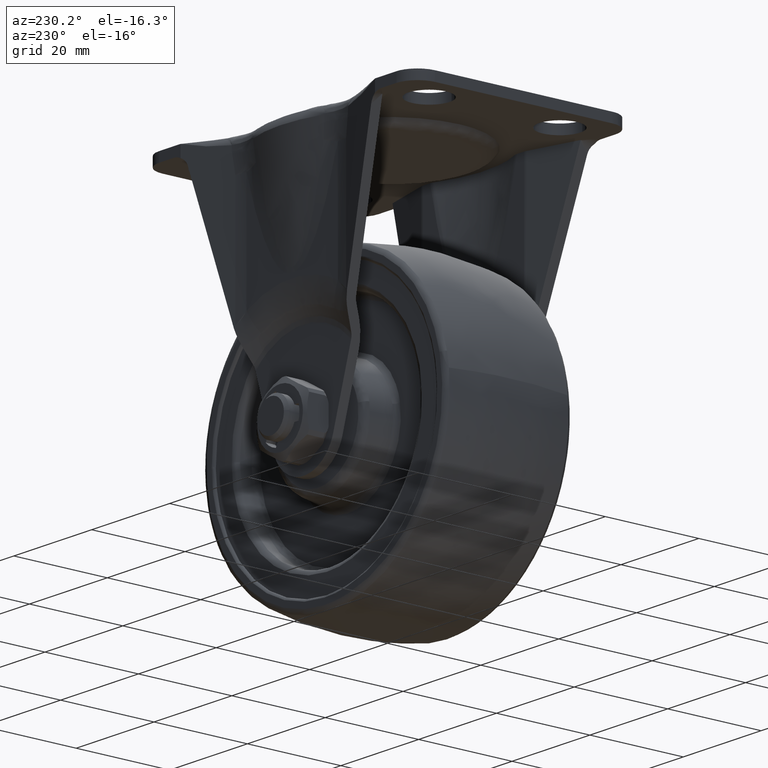
[diagram: clean part render]
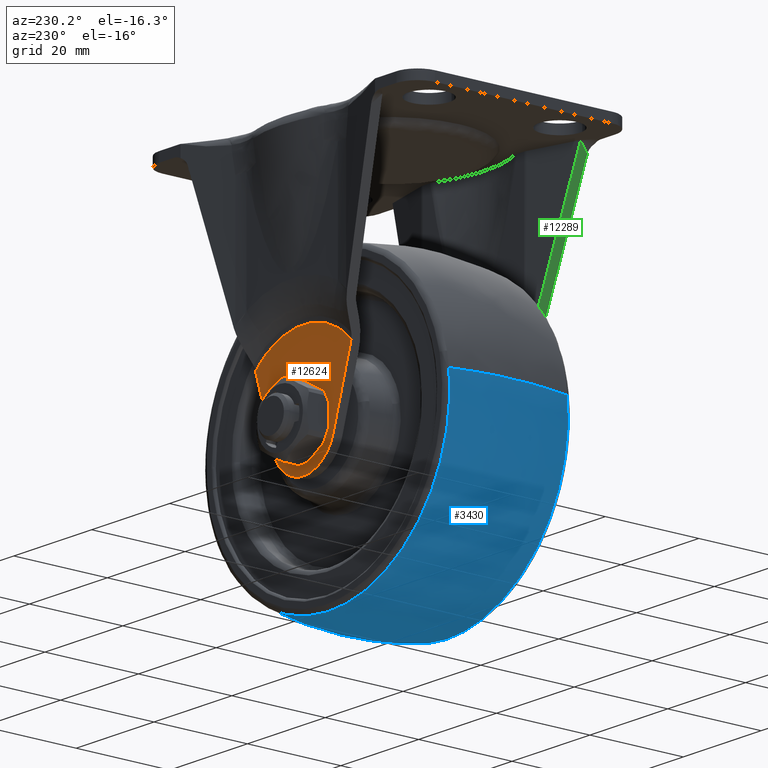
[diagram: same view with three faces highlighted in distinct colors, each labeled with its STEP entity id]
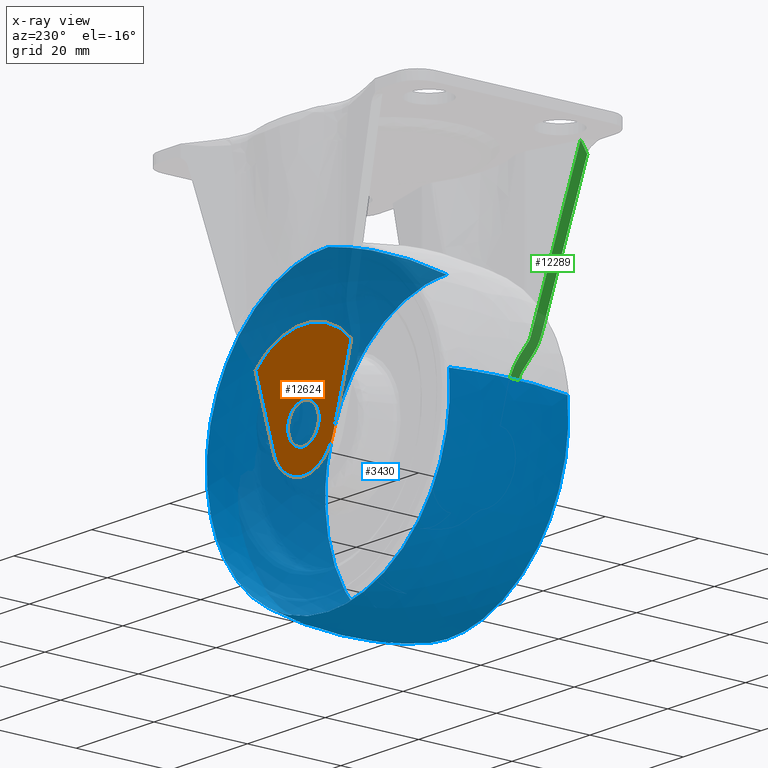
[diagram: x-ray of the same camera — body ghosted, the three highlighted faces saturated]
A machine part, auxiliary view with three faces highlighted in distinct colors.
The next image is the same camera in x-ray (body ghosted, the three faces saturated) — at least one of them is partly hidden behind the body in this view.
Their STEP definitions:

[orange] entity #12624 — the highlighted face is a freeform B-spline surface patch.
#4633=CARTESIAN_POINT('',(-3.987669334918500,18.005904999999899,-0.313836383088712));
#4634=VERTEX_POINT('',#4633);
#4640=CARTESIAN_POINT('',(0.0,18.005904999999899,3.999999999999945));
#4641=VERTEX_POINT('',#4640);
#4642=CARTESIAN_POINT('',(-3.987669334918500,18.005904999999895,-0.313836383088712));
#4643=CARTESIAN_POINT('',(-3.999999999999946,18.005904999999906,-0.157160428208835));
#4644=CARTESIAN_POINT('',(-3.999999999999945,18.005904999999899,0.0));
#4645=CARTESIAN_POINT('',(-3.999999999999946,18.005904999999895,3.999999999999946));
#4646=CARTESIAN_POINT('',(0.0,18.005904999999899,3.999999999999945));
#4654=(BOUNDED_CURVE()B_SPLINE_CURVE(2,(#4642,#4643,#4644,#4645,#4646),.UNSPECIFIED.,.F.,.U.)B_SPLINE_CURVE_WITH_KNOTS((3,2,3),(0.736331300617520,0.750000000000000,1.0),.UNSPECIFIED.)CURVE()GEOMETRIC_REPRESENTATION_ITEM()RATIONAL_B_SPLINE_CURVE((0.969723356139997,0.983986122563488,1.0,0.707106781186548,1.0))REPRESENTATION_ITEM(''));
#4655=EDGE_CURVE('',#4634,#4641,#4654,.T.);
#4657=CARTESIAN_POINT('',(3.987669334918500,18.005904999999899,0.313836383088712));
#4658=VERTEX_POINT('',#4657);
#4659=CARTESIAN_POINT('',(0.0,18.005904999999899,3.999999999999945));
#4660=CARTESIAN_POINT('',(3.697561966302893,18.005904999999903,3.999999999999946));
#4661=CARTESIAN_POINT('',(3.987669334918500,18.005904999999895,0.313836383088712));
#4669=(BOUNDED_CURVE()B_SPLINE_CURVE(2,(#4659,#4660,#4661),.UNSPECIFIED.,.F.,.U.)B_SPLINE_CURVE_WITH_KNOTS((3,3),(0.0,0.236331300617520),.UNSPECIFIED.)CURVE()GEOMETRIC_REPRESENTATION_ITEM()RATIONAL_B_SPLINE_CURVE((1.0,0.723120658623060,0.969723356139997))REPRESENTATION_ITEM(''));
#4670=EDGE_CURVE('',#4641,#4658,#4669,.T.);
#4716=CARTESIAN_POINT('',(0.0,18.005904999999899,-3.999999999999945));
#4717=VERTEX_POINT('',#4716);
#4718=CARTESIAN_POINT('',(3.987669334918500,18.005904999999895,0.313836383088712));
#4719=CARTESIAN_POINT('',(3.999999999999946,18.005904999999906,0.157160428208834));
#4720=CARTESIAN_POINT('',(3.999999999999945,18.005904999999899,0.0));
#4721=CARTESIAN_POINT('',(3.999999999999946,18.005904999999895,-3.999999999999946));
#4722=CARTESIAN_POINT('',(0.0,18.005904999999899,-3.999999999999945));
#4730=(BOUNDED_CURVE()B_SPLINE_CURVE(2,(#4718,#4719,#4720,#4721,#4722),.UNSPECIFIED.,.F.,.U.)B_SPLINE_CURVE_WITH_KNOTS((3,2,3),(0.236331300617520,0.250000000000000,0.500000000000000),.UNSPECIFIED.)CURVE()GEOMETRIC_REPRESENTATION_ITEM()RATIONAL_B_SPLINE_CURVE((0.969723356139997,0.983986122563488,1.0,0.707106781186548,1.0))REPRESENTATION_ITEM(''));
#4731=EDGE_CURVE('',#4658,#4717,#4730,.T.);
#4733=CARTESIAN_POINT('',(0.0,18.005904999999899,-3.999999999999945));
#4734=CARTESIAN_POINT('',(-3.697561966302902,18.005904999999899,-3.999999999999945));
#4735=CARTESIAN_POINT('',(-3.987669334918500,18.005904999999895,-0.313836383088712));
#4743=(BOUNDED_CURVE()B_SPLINE_CURVE(2,(#4733,#4734,#4735),.UNSPECIFIED.,.F.,.U.)B_SPLINE_CURVE_WITH_KNOTS((3,3),(0.500000000000000,0.736331300617521),.UNSPECIFIED.)CURVE()GEOMETRIC_REPRESENTATION_ITEM()RATIONAL_B_SPLINE_CURVE((1.0,0.723120658623059,0.969723356139997))REPRESENTATION_ITEM(''));
#4744=EDGE_CURVE('',#4717,#4634,#4743,.T.);
#6427=CARTESIAN_POINT('',(12.281271808417980,18.005904999999849,11.754499873933780));
#6428=VERTEX_POINT('',#6427);
#6442=CARTESIAN_POINT('',(-12.281271991667440,18.005904999999849,11.754499682472060));
#6443=VERTEX_POINT('',#6442);
#6444=CARTESIAN_POINT('',(-12.281271991667440,18.005904999999849,11.754499682472060));
#6445=CARTESIAN_POINT('',(-7.260822420891825,18.005904999999849,16.999938311483820));
#6446=CARTESIAN_POINT('',(-0.000000132512232,18.005904999999849,16.999938368080951));
#6447=CARTESIAN_POINT('',(7.260822155867370,18.005904999999849,16.999938424678088));
#6448=CARTESIAN_POINT('',(12.281271808417960,18.005904999999849,11.754499873933771));
#6456=(BOUNDED_CURVE()B_SPLINE_CURVE(2,(#6444,#6445,#6446,#6447,#6448),.UNSPECIFIED.,.F.,.U.)B_SPLINE_CURVE_WITH_KNOTS((3,2,3),(0.0,0.500000000000000,1.0),.UNSPECIFIED.)CURVE()GEOMETRIC_REPRESENTATION_ITEM()RATIONAL_B_SPLINE_CURVE((1.0,0.919631358259500,1.0,0.919631358259500,1.0))REPRESENTATION_ITEM(''));
#6457=EDGE_CURVE('',#6443,#6428,#6456,.T.);
#12350=CARTESIAN_POINT('',(-7.648125792956220,18.005904999999899,-3.346523354905685));
#12351=VERTEX_POINT('',#12350);
#12357=CARTESIAN_POINT('',(7.648124999999880,18.005904999999899,-3.346523000000000));
#12358=VERTEX_POINT('',#12357);
#12359=CARTESIAN_POINT('',(7.648124999999880,18.005904999999899,-3.346523000000000));
#12360=CARTESIAN_POINT('',(5.913581328119276,18.005904999999903,-8.999999960560439));
#12361=CARTESIAN_POINT('',(0.000000053354556,18.005904999999899,-9.000000000000002));
#12362=CARTESIAN_POINT('',(-5.913581221410172,18.005904999999903,-9.000000039439565));
#12363=CARTESIAN_POINT('',(-7.648125792956217,18.005904999999899,-3.346523354905685));
#12371=(BOUNDED_CURVE()B_SPLINE_CURVE(2,(#12359,#12360,#12361,#12362,#12363),.UNSPECIFIED.,.F.,.U.)B_SPLINE_CURVE_WITH_KNOTS((3,2,3),(0.0,0.500000000000000,1.0),.UNSPECIFIED.)CURVE()GEOMETRIC_REPRESENTATION_ITEM()RATIONAL_B_SPLINE_CURVE((1.0,0.804150300934855,1.0,0.804150300934855,1.0))REPRESENTATION_ITEM(''));
#12372=EDGE_CURVE('',#12358,#12351,#12371,.T.);
#12599=CARTESIAN_POINT('',(-13.508171006874729,18.005904999999849,-10.298696871092639));
#12600=CARTESIAN_POINT('',(-13.508171006874729,18.005904999999849,18.298635936546361));
#12601=CARTESIAN_POINT('',(13.508171482444030,18.005904999999849,-10.298696871092639));
#12602=CARTESIAN_POINT('',(13.508171482444030,18.005904999999849,18.298635936546361));
#12603=B_SPLINE_SURFACE_WITH_KNOTS('',1,1,((#12599,#12601),(#12600,#12602)),.UNSPECIFIED.,.F.,.F.,.U.,(2,2),(2,2),(0.0,28.597332807638999),(0.0,27.016342489318770),.UNSPECIFIED.);
#12604=CARTESIAN_POINT('',(-12.281271991667440,18.005904999999849,11.754499682472060));
#12605=CARTESIAN_POINT('',(-7.648125792956220,18.005904999999899,-3.346523354905685));
#12606=QUASI_UNIFORM_CURVE('',1,(#12604,#12605),.UNSPECIFIED.,.F.,.U.);
#12607=EDGE_CURVE('',#6443,#12351,#12606,.T.);
#12608=ORIENTED_EDGE('',*,*,#12607,.F.);
#12609=ORIENTED_EDGE('',*,*,#6457,.T.);
#12610=CARTESIAN_POINT('',(7.648124999999880,18.005904999999899,-3.346523000000000));
#12611=CARTESIAN_POINT('',(12.281271808417980,18.005904999999849,11.754499873933780));
#12612=QUASI_UNIFORM_CURVE('',1,(#12610,#12611),.UNSPECIFIED.,.F.,.U.);
#12613=EDGE_CURVE('',#12358,#6428,#12612,.T.);
#12614=ORIENTED_EDGE('',*,*,#12613,.F.);
#12615=ORIENTED_EDGE('',*,*,#12372,.T.);
#12616=EDGE_LOOP('',(#12608,#12609,#12614,#12615));
#12617=FACE_OUTER_BOUND('',#12616,.T.);
#12618=ORIENTED_EDGE('',*,*,#4744,.F.);
#12619=ORIENTED_EDGE('',*,*,#4731,.F.);
#12620=ORIENTED_EDGE('',*,*,#4670,.F.);
#12621=ORIENTED_EDGE('',*,*,#4655,.F.);
#12622=EDGE_LOOP('',(#12618,#12619,#12620,#12621));
#12623=FACE_BOUND('',#12622,.T.);
#12624=ADVANCED_FACE('',(#12617,#12623),#12603,.T.);

[blue] entity #3430 — the highlighted face is a freeform B-spline surface patch.
#2084=CARTESIAN_POINT('',(14.267128482310619,-12.695312032875380,-27.801027063266108));
#2085=VERTEX_POINT('',#2084);
#2099=CARTESIAN_POINT('',(30.765833215917429,-12.695307417059571,5.469150214503283));
#2100=VERTEX_POINT('',#2099);
#2101=CARTESIAN_POINT('',(14.267128482310623,-12.695312032875375,-27.801027063266119));
#2102=CARTESIAN_POINT('',(31.248168919015697,-12.695310789330925,-19.086575837847370));
#2103=CARTESIAN_POINT('',(31.248168919015701,-12.695308104582571,0.000000875337394));
#2104=CARTESIAN_POINT('',(31.248168919015704,-12.695307716941178,2.755844642648586));
#2105=CARTESIAN_POINT('',(30.765833215917432,-12.695307417059572,5.469150214503284));
#2113=(BOUNDED_CURVE()B_SPLINE_CURVE(2,(#2101,#2102,#2103,#2104,#2105),.UNSPECIFIED.,.F.,.U.)B_SPLINE_CURVE_WITH_KNOTS((3,2,3),(0.077652126994851,0.250000000000000,0.280081741416185),.UNSPECIFIED.)CURVE()GEOMETRIC_REPRESENTATION_ITEM()RATIONAL_B_SPLINE_CURVE((0.874565044723577,0.798081906879479,1.0,0.964757047716399,0.937995450451504))REPRESENTATION_ITEM(''));
#2114=EDGE_CURVE('',#2085,#2100,#2113,.T.);
#2213=CARTESIAN_POINT('',(0.0,-12.695303709165110,31.248170669690492));
#2214=VERTEX_POINT('',#2213);
#2215=CARTESIAN_POINT('',(30.765833215917432,-12.695307417059574,5.469150214503283));
#2216=CARTESIAN_POINT('',(26.183174376580730,-12.695303709165110,31.248170669690481));
#2217=CARTESIAN_POINT('',(0.0,-12.695303709165110,31.248170669690492));
#2225=(BOUNDED_CURVE()B_SPLINE_CURVE(2,(#2215,#2216,#2217),.UNSPECIFIED.,.F.,.U.)B_SPLINE_CURVE_WITH_KNOTS((3,3),(0.280081741416185,0.500000000000000),.UNSPECIFIED.)CURVE()GEOMETRIC_REPRESENTATION_ITEM()RATIONAL_B_SPLINE_CURVE((0.937995450451504,0.742349733470149,1.0))REPRESENTATION_ITEM(''));
#2226=EDGE_CURVE('',#2100,#2214,#2225,.T.);
#2228=CARTESIAN_POINT('',(-31.039171631068569,-12.695307140415460,3.608039904684822));
#2229=VERTEX_POINT('',#2228);
#2243=CARTESIAN_POINT('',(0.0,-12.695312500000020,-31.248168919015701));
#2244=VERTEX_POINT('',#2243);
#2245=CARTESIAN_POINT('',(-31.039171631068573,-12.695307140415455,3.608039904684822));
#2246=CARTESIAN_POINT('',(-31.248169951881604,-12.695307278645565,1.810073202015110));
#2247=CARTESIAN_POINT('',(-31.248169921174881,-12.695307433874490,0.000000116492485));
#2248=CARTESIAN_POINT('',(-31.248169391069894,-12.695310113666775,-31.248168864143427));
#2249=CARTESIAN_POINT('',(0.0,-12.695312500000020,-31.248168919015701));
#2257=(BOUNDED_CURVE()B_SPLINE_CURVE(2,(#2245,#2246,#2247,#2248,#2249),.UNSPECIFIED.,.F.,.U.)B_SPLINE_CURVE_WITH_KNOTS((3,2,3),(0.730000032484067,0.750000000000000,1.0),.UNSPECIFIED.)CURVE()GEOMETRIC_REPRESENTATION_ITEM()RATIONAL_B_SPLINE_CURVE((0.956886182127189,0.976568580552376,1.0,0.707106781186547,1.0))REPRESENTATION_ITEM(''));
#2258=EDGE_CURVE('',#2229,#2244,#2257,.T.);
#2260=CARTESIAN_POINT('',(0.0,-12.695312500000020,-31.248168919015701));
#2261=CARTESIAN_POINT('',(7.550003552074510,-12.695312500000020,-31.248168919015697));
#2262=CARTESIAN_POINT('',(14.267128482310623,-12.695312032875375,-27.801027063266119));
#2270=(BOUNDED_CURVE()B_SPLINE_CURVE(2,(#2260,#2261,#2262),.UNSPECIFIED.,.F.,.U.)B_SPLINE_CURVE_WITH_KNOTS((3,3),(0.0,0.077652126994851),.UNSPECIFIED.)CURVE()GEOMETRIC_REPRESENTATION_ITEM()RATIONAL_B_SPLINE_CURVE((1.0,0.909024874307068,0.874565044723577))REPRESENTATION_ITEM(''));
#2271=EDGE_CURVE('',#2244,#2085,#2270,.T.);
#2306=CARTESIAN_POINT('',(30.108965251965181,12.695309150866240,-8.360519532605659));
#2307=VERTEX_POINT('',#2306);
#2308=CARTESIAN_POINT('',(0.0,12.695303127355491,31.248170785556471));
#2309=VERTEX_POINT('',#2308);
#2310=CARTESIAN_POINT('',(30.108965251965181,12.695309150866244,-8.360519532605659));
#2311=CARTESIAN_POINT('',(31.248168919015697,12.695308452235817,-4.257873192118873));
#2312=CARTESIAN_POINT('',(31.248168919015701,12.695307813677770,0.000000933270384));
#2313=CARTESIAN_POINT('',(31.248168919015701,12.695303127355491,31.248170785556464));
#2314=CARTESIAN_POINT('',(0.0,12.695303127355491,31.248170785556471));
#2322=(BOUNDED_CURVE()B_SPLINE_CURVE(2,(#2310,#2311,#2312,#2313,#2314),.UNSPECIFIED.,.F.,.U.)B_SPLINE_CURVE_WITH_KNOTS((3,2,3),(0.204398607392699,0.250000000000000,0.500000000000000),.UNSPECIFIED.)CURVE()GEOMETRIC_REPRESENTATION_ITEM()RATIONAL_B_SPLINE_CURVE((0.912639455276521,0.946574645347486,1.0,0.707106781186547,1.0))REPRESENTATION_ITEM(''));
#2323=EDGE_CURVE('',#2307,#2309,#2322,.T.);
#2426=CARTESIAN_POINT('',(0.0,12.695312500000041,-31.248168919015701));
#2427=VERTEX_POINT('',#2426);
#2428=CARTESIAN_POINT('',(0.0,12.695312500000041,-31.248168919015701));
#2429=CARTESIAN_POINT('',(23.753626863599639,12.695312500000039,-31.248168919015701));
#2430=CARTESIAN_POINT('',(30.108965251965177,12.695309150866235,-8.360519532605659));
#2438=(BOUNDED_CURVE()B_SPLINE_CURVE(2,(#2428,#2429,#2430),.UNSPECIFIED.,.F.,.U.)B_SPLINE_CURVE_WITH_KNOTS((3,3),(0.0,0.204398607392698),.UNSPECIFIED.)CURVE()GEOMETRIC_REPRESENTATION_ITEM()RATIONAL_B_SPLINE_CURVE((1.0,0.760532135839062,0.912639455276521))REPRESENTATION_ITEM(''));
#2439=EDGE_CURVE('',#2427,#2307,#2438,.T.);
#2441=CARTESIAN_POINT('',(-31.039171757126010,12.695306496773160,3.608039930368593));
#2442=VERTEX_POINT('',#2441);
#2443=CARTESIAN_POINT('',(-31.039171757126010,12.695306496773160,3.608039930368593));
#2444=CARTESIAN_POINT('',(-31.248170075920374,12.695306651603566,1.810073221930395));
#2445=CARTESIAN_POINT('',(-31.248170041526020,12.695306825474230,0.000000130482294));
#2446=CARTESIAN_POINT('',(-31.248169447759746,12.695309827087666,-31.248168857553697));
#2447=CARTESIAN_POINT('',(0.0,12.695312500000041,-31.248168919015701));
#2455=(BOUNDED_CURVE()B_SPLINE_CURVE(2,(#2443,#2444,#2445,#2446,#2447),.UNSPECIFIED.,.F.,.U.)B_SPLINE_CURVE_WITH_KNOTS((3,2,3),(0.730000032424754,0.750000000000000,1.0),.UNSPECIFIED.)CURVE()GEOMETRIC_REPRESENTATION_ITEM()RATIONAL_B_SPLINE_CURVE((0.956886182010447,0.976568580482886,1.0,0.707106781186547,1.0))REPRESENTATION_ITEM(''));
#2456=EDGE_CURVE('',#2442,#2427,#2455,.T.);
#3338=CARTESIAN_POINT('',(-30.773485923211418,-13.971443930923725,3.577161419368414));
#3339=CARTESIAN_POINT('',(-32.282628353075225,-7.068329207024573,3.752586656857315));
#3340=CARTESIAN_POINT('',(-32.282628353075225,-5.969956E-015,3.752586656857316));
#3341=CARTESIAN_POINT('',(-32.282628353075225,7.068329207024553,3.752586656857315));
#3342=CARTESIAN_POINT('',(-30.773485923211428,13.971443930923703,3.577161419368414));
#3343=CARTESIAN_POINT('',(-30.980695919980707,-13.971443930923725,1.794582113832292));
#3344=CARTESIAN_POINT('',(-32.500000000000000,-7.068329207024572,1.882589043519000));
#3345=CARTESIAN_POINT('',(-32.500000000000000,-5.969956E-015,1.882589043519000));
#3346=CARTESIAN_POINT('',(-32.500000000000000,7.068329207024553,1.882589043519000));
#3347=CARTESIAN_POINT('',(-30.980695919980707,13.971443930923703,1.794582113832292));
#3348=CARTESIAN_POINT('',(-30.980695919980707,-13.971443930923723,0.0));
#3349=CARTESIAN_POINT('',(-32.500000000000000,-7.068329207024573,0.0));
#3350=CARTESIAN_POINT('',(-32.500000000000000,-5.969956E-015,0.0));
#3351=CARTESIAN_POINT('',(-32.500000000000000,7.068329207024554,0.0));
#3352=CARTESIAN_POINT('',(-30.980695919980707,13.971443930923702,0.0));
#3353=CARTESIAN_POINT('',(-30.980695919980707,-13.971443930923723,-30.980695919980707));
#3354=CARTESIAN_POINT('',(-32.500000000000007,-7.068329207024572,-32.500000000000007));
#3355=CARTESIAN_POINT('',(-32.500000000000007,-5.969956E-015,-32.500000000000007));
#3356=CARTESIAN_POINT('',(-32.500000000000007,7.068329207024556,-32.500000000000007));
#3357=CARTESIAN_POINT('',(-30.980695919980707,13.971443930923703,-30.980695919980707));
#3358=CARTESIAN_POINT('',(0.0,-13.971443930923723,-30.980695919980707));
#3359=CARTESIAN_POINT('',(0.0,-7.068329207024573,-32.500000000000000));
#3360=CARTESIAN_POINT('',(0.0,-5.969956E-015,-32.500000000000000));
#3361=CARTESIAN_POINT('',(0.0,7.068329207024554,-32.500000000000000));
#3362=CARTESIAN_POINT('',(0.0,13.971443930923702,-30.980695919980707));
#3363=CARTESIAN_POINT('',(30.980695919980707,-13.971443930923723,-30.980695919980707));
#3364=CARTESIAN_POINT('',(32.500000000000007,-7.068329207024572,-32.500000000000007));
#3365=CARTESIAN_POINT('',(32.500000000000007,-5.969956E-015,-32.500000000000007));
#3366=CARTESIAN_POINT('',(32.500000000000007,7.068329207024556,-32.500000000000007));
#3367=CARTESIAN_POINT('',(30.980695919980707,13.971443930923703,-30.980695919980707));
#3368=CARTESIAN_POINT('',(30.980695919980707,-13.971443930923723,0.0));
#3369=CARTESIAN_POINT('',(32.500000000000000,-7.068329207024573,0.0));
#3370=CARTESIAN_POINT('',(32.500000000000000,-5.969956E-015,0.0));
#3371=CARTESIAN_POINT('',(32.500000000000000,7.068329207024554,0.0));
#3372=CARTESIAN_POINT('',(30.980695919980707,13.971443930923702,0.0));
#3373=CARTESIAN_POINT('',(30.980695919980707,-13.971443930923723,30.980695919980707));
#3374=CARTESIAN_POINT('',(32.500000000000007,-7.068329207024572,32.500000000000007));
#3375=CARTESIAN_POINT('',(32.500000000000007,-5.969956E-015,32.500000000000007));
#3376=CARTESIAN_POINT('',(32.500000000000007,7.068329207024556,32.500000000000007));
#3377=CARTESIAN_POINT('',(30.980695919980707,13.971443930923703,30.980695919980707));
#3378=CARTESIAN_POINT('',(0.0,-13.971443930923723,30.980695919980707));
#3379=CARTESIAN_POINT('',(0.0,-7.068329207024573,32.500000000000000));
#3380=CARTESIAN_POINT('',(0.0,-5.969956E-015,32.500000000000000));
#3381=CARTESIAN_POINT('',(0.0,7.068329207024554,32.500000000000000));
#3382=CARTESIAN_POINT('',(0.0,13.971443930923702,30.980695919980707));
#3390=(BOUNDED_SURFACE()B_SPLINE_SURFACE(2,2,((#3338,#3343,#3348,#3353,#3358,#3363,#3368,#3373,#3378),(#3339,#3344,#3349,#3354,#3359,#3364,#3369,#3374,#3379),(#3340,#3345,#3350,#3355,#3360,#3365,#3370,#3375,#3380),(#3341,#3346,#3351,#3356,#3361,#3366,#3371,#3376,#3381),(#3342,#3347,#3352,#3357,#3362,#3367,#3372,#3377,#3382)),.UNSPECIFIED.,.F.,.F.,.U.)B_SPLINE_SURFACE_WITH_KNOTS((3,2,3),(3,2,2,2,3),(0.0,14.378540232222210,28.757080464444410),(0.0,4.307820149998688,58.155583258501053,112.003346367003400,165.851109475505810),.UNSPECIFIED.)GEOMETRIC_REPRESENTATION_ITEM()RATIONAL_B_SPLINE_SURFACE(((0.914152645581930,0.932956071312678,0.955341101055019,0.675528170902227,0.955341101055019,0.675528170902227,0.955341101055019,0.675528170902227,0.955341101055019),(0.929794029671774,0.948919186795502,0.971687230085695,0.687086629585968,0.971687230085695,0.687086629585968,0.971687230085695,0.687086629585968,0.971687230085695),(0.956886126402807,0.976568547383107,1.0,0.707106781186548,1.0,0.707106781186548,1.0,0.707106781186548,1.0),(0.929794029671774,0.948919186795502,0.971687230085695,0.687086629585968,0.971687230085695,0.687086629585968,0.971687230085695,0.687086629585968,0.971687230085695),(0.914152645581930,0.932956071312678,0.955341101055019,0.675528170902227,0.955341101055019,0.675528170902227,0.955341101055019,0.675528170902227,0.955341101055019)))REPRESENTATION_ITEM('')SURFACE());
#3391=ORIENTED_EDGE('',*,*,#2258,.F.);
#3392=CARTESIAN_POINT('',(-31.039171631068569,-12.695307140415462,3.608039904684822));
#3393=CARTESIAN_POINT('',(-32.282628953079303,-6.409372375657039,3.752581495152104));
#3394=CARTESIAN_POINT('',(-32.282628952759936,-1.129903E-014,3.752581497899453));
#3395=CARTESIAN_POINT('',(-32.282628952440568,6.409372044325697,3.752581500646802));
#3396=CARTESIAN_POINT('',(-31.039171757126010,12.695306496773158,3.608039930368593));
#3404=(BOUNDED_CURVE()B_SPLINE_CURVE(2,(#3392,#3393,#3394,#3395,#3396),.UNSPECIFIED.,.F.,.U.)B_SPLINE_CURVE_WITH_KNOTS((3,2,3),(0.403932501776219,0.500000000000000,0.596067493385425),.UNSPECIFIED.)CURVE()GEOMETRIC_REPRESENTATION_ITEM()RATIONAL_B_SPLINE_CURVE((0.917088417782160,0.932254713046547,0.956886118190660,0.932254714287086,0.917088419309834))REPRESENTATION_ITEM(''));
#3405=EDGE_CURVE('',#2229,#2442,#3404,.T.);
#3406=ORIENTED_EDGE('',*,*,#3405,.T.);
#3407=ORIENTED_EDGE('',*,*,#2456,.T.);
#3408=ORIENTED_EDGE('',*,*,#2439,.T.);
#3409=ORIENTED_EDGE('',*,*,#2323,.T.);
#3410=CARTESIAN_POINT('',(0.0,-12.695303709165106,31.248170669690492));
#3411=CARTESIAN_POINT('',(0.0,-6.409370609333253,32.500000000000000));
#3412=CARTESIAN_POINT('',(0.0,-5.969956E-015,32.500000000000000));
#3413=CARTESIAN_POINT('',(0.0,6.409370309831887,32.500000000000000));
#3414=CARTESIAN_POINT('',(0.0,12.695303127355494,31.248170785556468));
#3422=(BOUNDED_CURVE()B_SPLINE_CURVE(2,(#3410,#3411,#3412,#3413,#3414),.UNSPECIFIED.,.F.,.U.)B_SPLINE_CURVE_WITH_KNOTS((3,2,3),(0.403932527569445,0.500000000000000,0.596067468057005),.UNSPECIFIED.)CURVE()GEOMETRIC_REPRESENTATION_ITEM()RATIONAL_B_SPLINE_CURVE((0.958409165408592,0.974258798343334,1.0,0.974258799515223,0.958409166851727))REPRESENTATION_ITEM(''));
#3423=EDGE_CURVE('',#2214,#2309,#3422,.T.);
#3424=ORIENTED_EDGE('',*,*,#3423,.F.);
#3425=ORIENTED_EDGE('',*,*,#2226,.F.);
#3426=ORIENTED_EDGE('',*,*,#2114,.F.);
#3427=ORIENTED_EDGE('',*,*,#2271,.F.);
#3428=EDGE_LOOP('',(#3391,#3406,#3407,#3408,#3409,#3424,#3425,#3426,#3427));
#3429=FACE_OUTER_BOUND('',#3428,.T.);
#3430=ADVANCED_FACE('',(#3429),#3390,.T.);

[green] entity #12289 — the highlighted face is a freeform B-spline surface patch.
#6170=CARTESIAN_POINT('',(-14.319961813695160,-18.676329657613799,18.399290608720150));
#6171=VERTEX_POINT('',#6170);
#6172=CARTESIAN_POINT('',(-14.101468009071979,-18.470476564310751,17.687144192568852));
#6173=VERTEX_POINT('',#6172);
#6174=CARTESIAN_POINT('',(-14.319961813695160,-18.676329657613799,18.399290608720150));
#6175=CARTESIAN_POINT('',(-14.281736912598470,-18.666458227781892,18.274702516299389));
#6176=CARTESIAN_POINT('',(-14.244434928942811,-18.643943955136240,18.153122529070568));
#6177=CARTESIAN_POINT('',(-14.189781382876591,-18.592371948699910,17.974987835374549));
#6178=CARTESIAN_POINT('',(-14.171781715655460,-18.572192460003549,17.916320732545000));
#6179=CARTESIAN_POINT('',(-14.136222801298439,-18.525800264837759,17.800422007337371));
#6180=CARTESIAN_POINT('',(-14.118630821819600,-18.499514617818960,17.743083699001868));
#6181=CARTESIAN_POINT('',(-14.101468009071979,-18.470476564310751,17.687144192568852));
#6182=B_SPLINE_CURVE_WITH_KNOTS('',3,(#6174,#6175,#6176,#6177,#6178,#6179,#6180,#6181),.UNSPECIFIED.,.F.,.U.,(4,2,2,4),(0.0,0.499999999999997,0.749999999999998,1.0),.UNSPECIFIED.);
#6183=EDGE_CURVE('',#6171,#6173,#6182,.T.);
#6520=CARTESIAN_POINT('',(-12.595002921462999,-18.241253714584150,12.777056627164839));
#6521=VERTEX_POINT('',#6520);
#6535=CARTESIAN_POINT('',(-12.281271991667440,-18.005904999999849,11.754499682472041));
#6536=VERTEX_POINT('',#6535);
#6537=CARTESIAN_POINT('',(-12.281271991667440,-18.005904999999849,11.754499682472041));
#6538=CARTESIAN_POINT('',(-12.335619259952081,-18.005904999999849,11.931636111595420));
#6539=CARTESIAN_POINT('',(-12.389027895671630,-18.025250309731440,12.105713214535839));
#6540=CARTESIAN_POINT('',(-12.467722990283409,-18.083490487476059,12.362207579184449));
#6541=CARTESIAN_POINT('',(-12.493716051325141,-18.107822215504100,12.446927900191280));
#6542=CARTESIAN_POINT('',(-12.545191094867871,-18.167019050686100,12.614702761558251));
#6543=CARTESIAN_POINT('',(-12.570419479401220,-18.201610538397428,12.696930738967920));
#6544=CARTESIAN_POINT('',(-12.595002921462999,-18.241253714584150,12.777056627164860));
#6545=B_SPLINE_CURVE_WITH_KNOTS('',3,(#6537,#6538,#6539,#6540,#6541,#6542,#6543,#6544),.UNSPECIFIED.,.F.,.U.,(4,2,2,4),(0.0,0.500000000000000,0.750000000000000,1.0),.UNSPECIFIED.);
#6546=EDGE_CURVE('',#6536,#6521,#6545,.T.);
#10699=CARTESIAN_POINT('',(-24.168787795165301,-21.219750093333399,50.500000000000000));
#10700=VERTEX_POINT('',#10699);
#10708=CARTESIAN_POINT('',(-23.868019397345151,-22.174885192544188,49.519692402863917));
#10709=VERTEX_POINT('',#10708);
#10710=CARTESIAN_POINT('',(-23.868019397345151,-22.174885192544188,49.519692402863917));
#10711=CARTESIAN_POINT('',(-23.968275529951871,-21.856506826140610,49.846461601909283));
#10712=CARTESIAN_POINT('',(-24.068531662558581,-21.538128459737020,50.173230800954627));
#10713=CARTESIAN_POINT('',(-24.168787795165301,-21.219750093333449,50.500000000000000));
#10714=B_SPLINE_CURVE_WITH_KNOTS('',3,(#10710,#10711,#10712,#10713),.UNSPECIFIED.,.F.,.U.,(4,4),(0.139624330417807,0.279248660835614),.UNSPECIFIED.);
#10715=EDGE_CURVE('',#10709,#10700,#10714,.T.);
#10717=CARTESIAN_POINT('',(-23.567250999525001,-23.130020291754750,48.539384805727799));
#10718=VERTEX_POINT('',#10717);
#10719=CARTESIAN_POINT('',(-23.567250999525001,-23.130020291754750,48.539384805727799));
#10720=CARTESIAN_POINT('',(-23.667507132131728,-22.811641925351349,48.866154004773243));
#10721=CARTESIAN_POINT('',(-23.767763264738441,-22.493263558947771,49.192923203818573));
#10722=CARTESIAN_POINT('',(-23.868019397345151,-22.174885192544188,49.519692402863917));
#10723=B_SPLINE_CURVE_WITH_KNOTS('',3,(#10719,#10720,#10721,#10722),.UNSPECIFIED.,.F.,.U.,(4,4),(0.0,0.139624330417807),.UNSPECIFIED.);
#10724=EDGE_CURVE('',#10718,#10709,#10723,.T.);
#11639=CARTESIAN_POINT('',(-13.561691867612540,-19.829762016889550,15.927828200395201));
#11640=VERTEX_POINT('',#11639);
#11641=CARTESIAN_POINT('',(-14.528225214446360,-20.795727560416100,19.078092621968601));
#11642=VERTEX_POINT('',#11641);
#11643=CARTESIAN_POINT('',(-13.561691867612540,-19.829762016889550,15.927828200395201));
#11644=CARTESIAN_POINT('',(-13.714664101756091,-20.085154244590910,16.426417295445059));
#11645=CARTESIAN_POINT('',(-13.871782830821861,-20.292322098098641,16.938521242750991));
#11646=CARTESIAN_POINT('',(-14.193962328692249,-20.614290660002968,17.988614974981019));
#11647=CARTESIAN_POINT('',(-14.359024605904620,-20.729073825468021,18.526609676301280));
#11648=CARTESIAN_POINT('',(-14.528225214446360,-20.795727560416100,19.078092621968601));
#11649=B_SPLINE_CURVE_WITH_KNOTS('',3,(#11643,#11644,#11645,#11646,#11647,#11648),.UNSPECIFIED.,.F.,.U.,(4,2,4),(0.0,0.500000000000000,1.0),.UNSPECIFIED.);
#11650=EDGE_CURVE('',#11640,#11642,#11649,.T.);
#11737=CARTESIAN_POINT('',(-11.769327249039600,-16.005904999999849,10.085895786088001));
#11738=VERTEX_POINT('',#11737);
#11754=CARTESIAN_POINT('',(-13.333103028460700,-17.182648572921352,15.182778596563351));
#11755=VERTEX_POINT('',#11754);
#11756=CARTESIAN_POINT('',(-13.333103028460700,-17.182648572921352,15.182778596563351));
#11757=CARTESIAN_POINT('',(-13.210980938185591,-16.980131750438840,14.784740725089881));
#11758=CARTESIAN_POINT('',(-13.086502158266160,-16.806208268374270,14.379021591957480));
#11759=CARTESIAN_POINT('',(-12.833230447528519,-16.510704210559819,13.553522024931141));
#11760=CARTESIAN_POINT('',(-12.704434861738690,-16.389155847157749,13.133732937572169));
#11761=CARTESIAN_POINT('',(-12.442746831726501,-16.195765651754240,12.280801692934240));
#11762=CARTESIAN_POINT('',(-12.309811053661861,-16.123929984660901,11.847518295767360));
#11763=CARTESIAN_POINT('',(-12.040116884747970,-16.028736990382999,10.968492292351771));
#11764=CARTESIAN_POINT('',(-11.904894892628450,-16.005904999999849,10.527757337697681));
#11765=CARTESIAN_POINT('',(-11.769327249039600,-16.005904999999849,10.085895786088001));
#11766=B_SPLINE_CURVE_WITH_KNOTS('',3,(#11756,#11757,#11758,#11759,#11760,#11761,#11762,#11763,#11764,#11765),.UNSPECIFIED.,.F.,.U.,(4,2,2,2,4),(0.0,0.250000000000000,0.500000000000000,0.750000000000000,1.0),.UNSPECIFIED.);
#11767=EDGE_CURVE('',#11755,#11738,#11766,.T.);
#11915=CARTESIAN_POINT('',(-14.101468009071960,-18.470476564310768,17.687144192568841));
#11916=CARTESIAN_POINT('',(-13.845813359187501,-18.037930133132299,16.853877807731621));
#11917=CARTESIAN_POINT('',(-13.589749528234810,-17.608249162613429,16.019277761137761));
#11918=CARTESIAN_POINT('',(-13.333103028460680,-17.182648572921359,15.182778596563351));
#11919=QUASI_UNIFORM_CURVE('',3,(#11915,#11916,#11917,#11918),.UNSPECIFIED.,.F.,.U.);
#11920=EDGE_CURVE('',#6173,#11755,#11919,.T.);
#11943=CARTESIAN_POINT('',(-7.648125792956220,-16.005904999999899,-3.346523354905685));
#11944=VERTEX_POINT('',#11943);
#11945=CARTESIAN_POINT('',(-11.769327249039600,-16.005904999999849,10.085895786088001));
#11946=CARTESIAN_POINT('',(-7.648125792956220,-16.005904999999899,-3.346523354905685));
#11947=QUASI_UNIFORM_CURVE('',1,(#11945,#11946),.UNSPECIFIED.,.F.,.U.);
#11948=EDGE_CURVE('',#11738,#11944,#11947,.T.);
#12075=CARTESIAN_POINT('',(-14.319961813695160,-18.676329657613799,18.399290608720150));
#12076=CARTESIAN_POINT('',(-24.168787795165301,-21.219750093333399,50.500000000000000));
#12077=QUASI_UNIFORM_CURVE('',1,(#12075,#12076),.UNSPECIFIED.,.F.,.U.);
#12078=EDGE_CURVE('',#6171,#10700,#12077,.T.);
#12249=CARTESIAN_POINT('',(-24.993994927353739,-23.485869677565450,53.189633707391089));
#12250=CARTESIAN_POINT('',(-6.822916271736864,-23.485869677565450,-6.036157909547288));
#12251=CARTESIAN_POINT('',(-24.993994927353739,-15.650055805272810,53.189633707391089));
#12252=CARTESIAN_POINT('',(-6.822916271736864,-15.650055805272810,-6.036157909547288));
#12253=B_SPLINE_SURFACE_WITH_KNOTS('',1,1,((#12249,#12251),(#12250,#12252)),.UNSPECIFIED.,.F.,.F.,.U.,(2,2),(2,2),(0.0,61.950645615373730),(0.0,7.835813872292636),.UNSPECIFIED.);
#12254=CARTESIAN_POINT('',(-14.528225214446360,-20.795727560416100,19.078092621968601));
#12255=CARTESIAN_POINT('',(-23.567250999525001,-23.130020291754750,48.539384805727799));
#12256=QUASI_UNIFORM_CURVE('',1,(#12254,#12255),.UNSPECIFIED.,.F.,.U.);
#12257=EDGE_CURVE('',#11642,#10718,#12256,.T.);
#12258=ORIENTED_EDGE('',*,*,#12257,.T.);
#12259=ORIENTED_EDGE('',*,*,#10724,.T.);
#12260=ORIENTED_EDGE('',*,*,#10715,.T.);
#12261=ORIENTED_EDGE('',*,*,#12078,.F.);
#12262=ORIENTED_EDGE('',*,*,#6183,.T.);
#12263=ORIENTED_EDGE('',*,*,#11920,.T.);
#12264=ORIENTED_EDGE('',*,*,#11767,.T.);
#12265=ORIENTED_EDGE('',*,*,#11948,.T.);
#12266=CARTESIAN_POINT('',(-7.648125792956220,-18.005904999999899,-3.346523354905685));
#12267=VERTEX_POINT('',#12266);
#12268=CARTESIAN_POINT('',(-7.648125792956220,-16.005904999999899,-3.346523354905685));
#12269=CARTESIAN_POINT('',(-7.648125792956220,-18.005904999999899,-3.346523354905685));
#12270=QUASI_UNIFORM_CURVE('',1,(#12268,#12269),.UNSPECIFIED.,.F.,.U.);
#12271=EDGE_CURVE('',#11944,#12267,#12270,.T.);
#12272=ORIENTED_EDGE('',*,*,#12271,.T.);
#12273=CARTESIAN_POINT('',(-12.281271991667440,-18.005904999999849,11.754499682472041));
#12274=CARTESIAN_POINT('',(-7.648125792956220,-18.005904999999899,-3.346523354905685));
#12275=QUASI_UNIFORM_CURVE('',1,(#12273,#12274),.UNSPECIFIED.,.F.,.U.);
#12276=EDGE_CURVE('',#6536,#12267,#12275,.T.);
#12277=ORIENTED_EDGE('',*,*,#12276,.F.);
#12278=ORIENTED_EDGE('',*,*,#6546,.T.);
#12279=CARTESIAN_POINT('',(-13.561691867612520,-19.829762016889561,15.927828200395210));
#12280=CARTESIAN_POINT('',(-13.240365687645060,-19.293297282769139,14.880515724537480));
#12281=CARTESIAN_POINT('',(-12.918292441019570,-18.762589309123619,13.830768301638310));
#12282=CARTESIAN_POINT('',(-12.595002921462980,-18.241253714584161,12.777056627164839));
#12283=QUASI_UNIFORM_CURVE('',3,(#12279,#12280,#12281,#12282),.UNSPECIFIED.,.F.,.U.);
#12284=EDGE_CURVE('',#11640,#6521,#12283,.T.);
#12285=ORIENTED_EDGE('',*,*,#12284,.F.);
#12286=ORIENTED_EDGE('',*,*,#11650,.T.);
#12287=EDGE_LOOP('',(#12258,#12259,#12260,#12261,#12262,#12263,#12264,#12265,#12272,#12277,#12278,#12285,#12286));
#12288=FACE_OUTER_BOUND('',#12287,.T.);
#12289=ADVANCED_FACE('',(#12288),#12253,.F.);